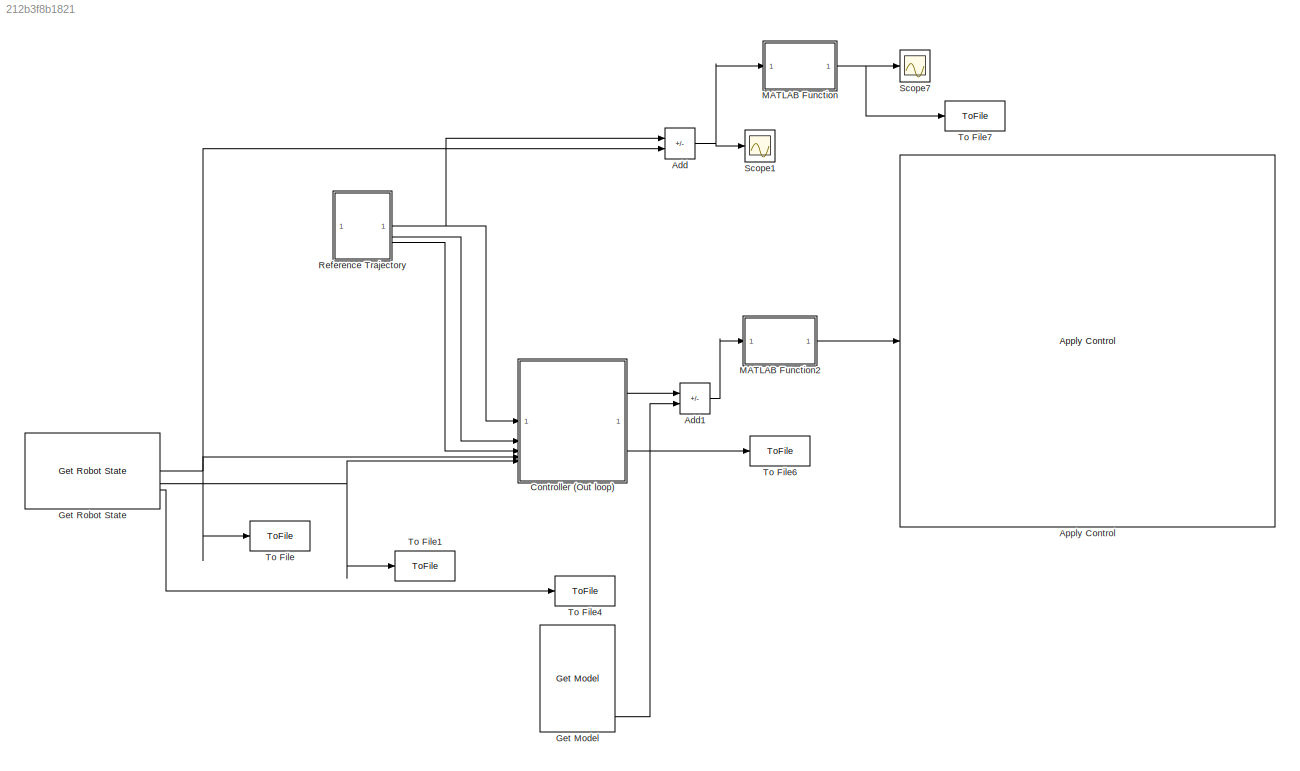
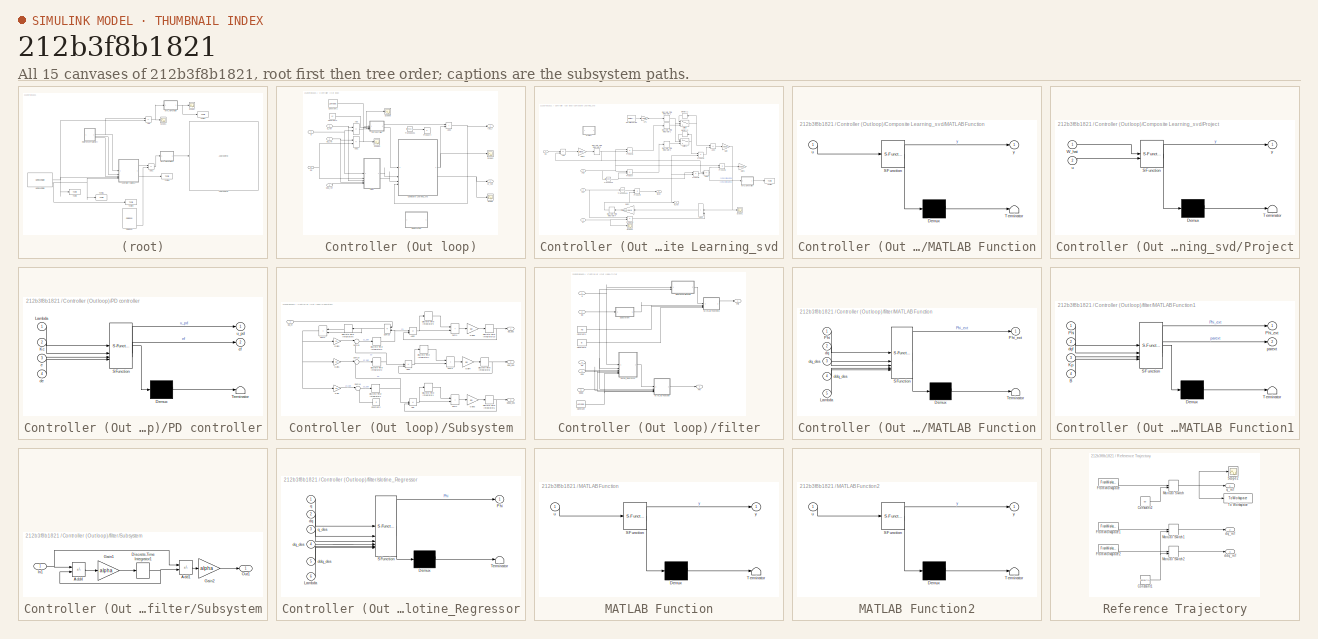
[diagram: thumbnail index - all 15 canvases of the model, root first then tree order]
MODEL mdl_212b3f8b1821
KIND model
CONFIG AbsTol = auto
CONFIG EnableMultiTasking = on
CONFIG FixedStep = 0.001
CONFIG MaxStep = auto
CONFIG MinStep = auto
CONFIG PreLoadFcn = set_param(gcs, 'RTWSystemTargetFile', 'franka_emika_panda.tlc');\ndemos_common_configs();
CONFIG RelTol = 1e-3
CONFIG SampleTimeConstraint = Unconstrained
CONFIG SolverName = FixedStepDiscrete
CONFIG StartTime = 0.0
CONFIG StopTime = inf
BLOCK [Sum] Add
  IconShape = rectangular
  Inputs = +-
BLOCK [Sum] Add1
  IconShape = rectangular
  Inputs = +-
BLOCK [Reference] Apply Control  REF=franka_simulink_library/Apply Control
  SourceBlock = franka_simulink_library/Apply Control
  UserDataPersistent = on
BLOCK [SubSystem] Controller (Out loop)
BLOCK [Sum] Controller (Out loop)/Add
  IconShape = rectangular
  Inputs = +-
BLOCK [Sum] Controller (Out loop)/Add1
  IconShape = rectangular
  Inputs = +-
BLOCK [Sum] Controller (Out loop)/Add2
  IconShape = rectangular
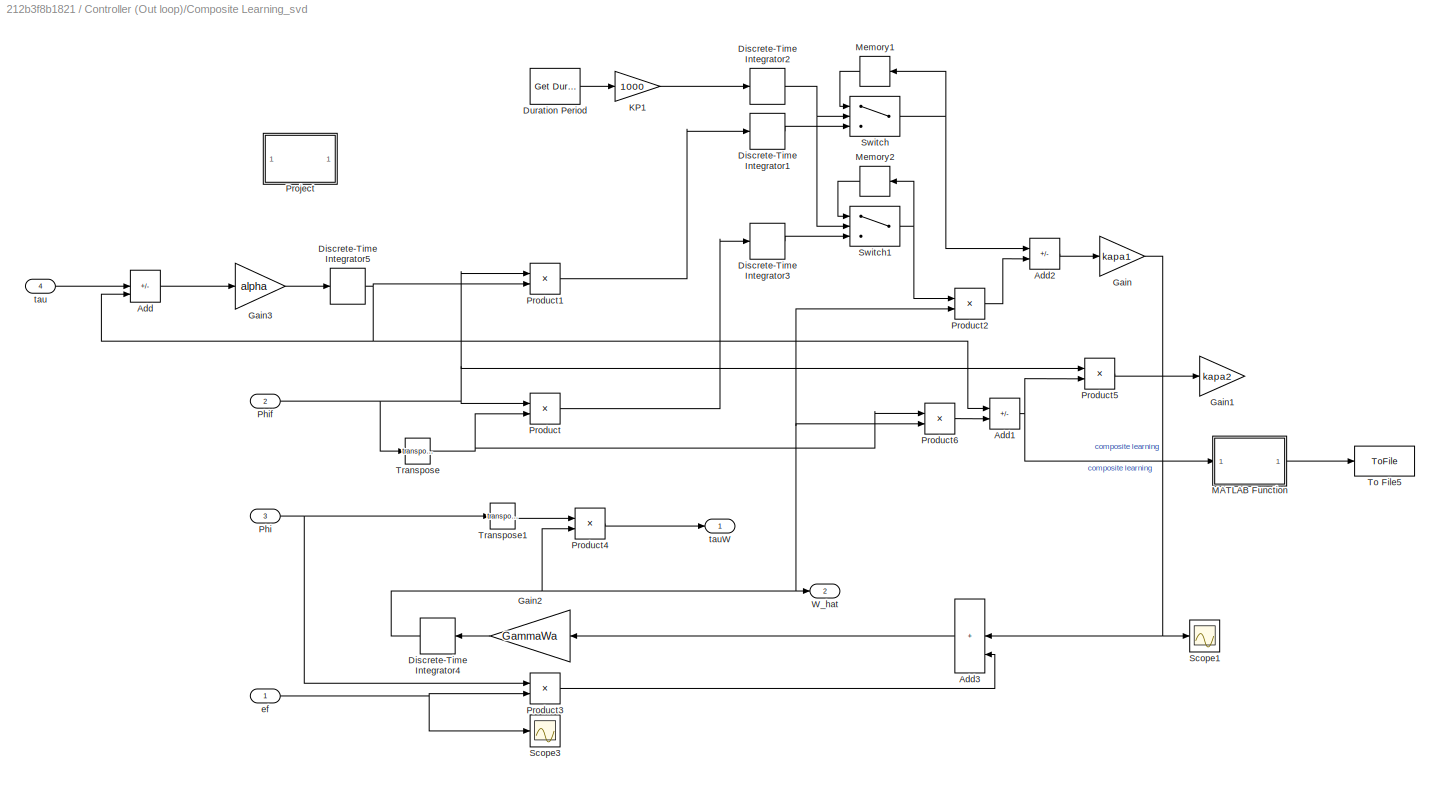
BLOCK [SubSystem] Controller (Out loop)/Composite Learning_svd
BLOCK [Sum] Controller (Out loop)/Composite Learning_svd/Add
  IconShape = rectangular
  Inputs = ++-
BLOCK [Sum] Controller (Out loop)/Composite Learning_svd/Add1
  IconShape = rectangular
  Inputs = +-
BLOCK [Sum] Controller (Out loop)/Composite Learning_svd/Add2
  IconShape = rectangular
  Inputs = +-
BLOCK [Sum] Controller (Out loop)/Composite Learning_svd/Add3
  IconShape = rectangular
  Inputs = +++
  NameLocation = top
BLOCK [DiscreteIntegrator] Controller (Out loop)/Composite Learning_svd/Discrete-Time Integrator1
  ICPrevOutput = DiscIntNeverNeededParam
  ICPrevScaledInput = DiscIntNeverNeededParam
  InitialConditionSetting = Auto
  SampleTime = -1
BLOCK [DiscreteIntegrator] Controller (Out loop)/Composite Learning_svd/Discrete-Time Integrator2
  ICPrevOutput = DiscIntNeverNeededParam
  ICPrevScaledInput = DiscIntNeverNeededParam
  SampleTime = -1
BLOCK [DiscreteIntegrator] Controller (Out loop)/Composite Learning_svd/Discrete-Time Integrator3
  ICPrevOutput = DiscIntNeverNeededParam
  ICPrevScaledInput = DiscIntNeverNeededParam
  InitialConditionSetting = Auto
  SampleTime = -1
BLOCK [DiscreteIntegrator] Controller (Out loop)/Composite Learning_svd/Discrete-Time Integrator4
  ICPrevOutput = DiscIntNeverNeededParam
  ICPrevScaledInput = DiscIntNeverNeededParam
  InitialConditionSetting = Auto
  NameLocation = top
  SampleTime = -1
BLOCK [DiscreteIntegrator] Controller (Out loop)/Composite Learning_svd/Discrete-Time Integrator5
  ICPrevOutput = DiscIntNeverNeededParam
  ICPrevScaledInput = DiscIntNeverNeededParam
  InitialConditionSetting = Auto
  SampleTime = -1
BLOCK [Reference] Controller (Out loop)/Composite Learning_svd/Duration Period  REF=franka_simulink_library/Get Duration Period
  SourceBlock = franka_simulink_library/Get Duration Period
BLOCK [Gain] Controller (Out loop)/Composite Learning_svd/Gain
  Gain = kapa1
BLOCK [Gain] Controller (Out loop)/Composite Learning_svd/Gain1
  Commented = on
  Gain = kapa2
BLOCK [Gain] Controller (Out loop)/Composite Learning_svd/Gain2
  Gain = GammaWa
  Multiplication = Matrix(K*u)
  NameLocation = top
BLOCK [Gain] Controller (Out loop)/Composite Learning_svd/Gain3
  Gain = alpha
BLOCK [Gain] Controller (Out loop)/Composite Learning_svd/KP1
  Gain = 1000
BLOCK [SubSystem] Controller (Out loop)/Composite Learning_svd/MATLAB Function
  ErrorFcn = Stateflow.Translate.translate
  PermitHierarchicalResolution = ExplicitOnly
  SFBlockType = MATLAB Function
  TreatAsAtomicUnit = on
BLOCK [Demux] Controller (Out loop)/Composite Learning_svd/MATLAB Function/ Demux 
  Outputs = 1
BLOCK [S-Function] Controller (Out loop)/Composite Learning_svd/MATLAB Function/ SFunction 
  EnableBusSupport = off
  FunctionName = sf_sfun
  PortCounts = [1 2]
  SFcnIsStateOwnerBlock = off
  SFunctionDeploymentMode = off
  Tag = Stateflow S-Function 6
BLOCK [Terminator] Controller (Out loop)/Composite Learning_svd/MATLAB Function/ Terminator 
BLOCK [Inport] Controller (Out loop)/Composite Learning_svd/MATLAB Function/u
BLOCK [Outport] Controller (Out loop)/Composite Learning_svd/MATLAB Function/y
BLOCK [Memory] Controller (Out loop)/Composite Learning_svd/Memory1
  NameLocation = top
BLOCK [Memory] Controller (Out loop)/Composite Learning_svd/Memory2
  NameLocation = top
BLOCK [Inport] Controller (Out loop)/Composite Learning_svd/Phi
  Port = 3
BLOCK [Inport] Controller (Out loop)/Composite Learning_svd/Phif
  Port = 2
BLOCK [Product] Controller (Out loop)/Composite Learning_svd/Product
  Multiplication = Matrix(*)
BLOCK [Product] Controller (Out loop)/Composite Learning_svd/Product1
  Multiplication = Matrix(*)
BLOCK [Product] Controller (Out loop)/Composite Learning_svd/Product2
  Multiplication = Matrix(*)
BLOCK [Product] Controller (Out loop)/Composite Learning_svd/Product3
  Multiplication = Matrix(*)
BLOCK [Product] Controller (Out loop)/Composite Learning_svd/Product4
  Multiplication = Matrix(*)
BLOCK [Product] Controller (Out loop)/Composite Learning_svd/Product5
  Commented = on
  Multiplication = Matrix(*)
BLOCK [Product] Controller (Out loop)/Composite Learning_svd/Product6
  Multiplication = Matrix(*)
BLOCK [SubSystem] Controller (Out loop)/Composite Learning_svd/Project
  Commented = on
  ErrorFcn = Stateflow.Translate.translate
  NameLocation = top
  PermitHierarchicalResolution = ExplicitOnly
  SFBlockType = MATLAB Function
  TreatAsAtomicUnit = on
BLOCK [Demux] Controller (Out loop)/Composite Learning_svd/Project/ Demux 
  Outputs = 1
BLOCK [S-Function] Controller (Out loop)/Composite Learning_svd/Project/ SFunction 
  EnableBusSupport = off
  FunctionName = sf_sfun
  PortCounts = [2 2]
  SFcnIsStateOwnerBlock = off
  SFunctionDeploymentMode = off
  Tag = Stateflow S-Function 9
BLOCK [Terminator] Controller (Out loop)/Composite Learning_svd/Project/ Terminator 
BLOCK [Inport] Controller (Out loop)/Composite Learning_svd/Project/W_hat
BLOCK [Inport] Controller (Out loop)/Composite Learning_svd/Project/u
  Port = 2
BLOCK [Outport] Controller (Out loop)/Composite Learning_svd/Project/y
BLOCK [Scope] Controller (Out loop)/Composite Learning_svd/Scope1
  Floating = off
  NumInputPorts = 1
  ScopeSpecificationString = Simulink.scopes.TimeScopeBlockCfg('CurrentConfiguration', extmgr.ConfigurationSet(extmgr.Configuration('Core','General UI',true),extmgr.Configuration('Core','Source UI',true),extmgr.Configuration('Sources','WiredSimulink',true,'DataLoggingVariableName','ScopeData1'),extmgr.Configuration('Visuals','Time Domain',true,'SerializedDisplays',{struct('MinYLimReal','-336472547.61572','MaxYLimReal','330208...<+3174ch>
BLOCK [Scope] Controller (Out loop)/Composite Learning_svd/Scope3
  Floating = off
  NumInputPorts = 1
  ScopeSpecificationString = Simulink.scopes.TimeScopeBlockCfg('CurrentConfiguration', extmgr.ConfigurationSet(extmgr.Configuration('Core','General UI',true),extmgr.Configuration('Core','Source UI',true),extmgr.Configuration('Sources','WiredSimulink',true,'DataLoggingVariableName','ScopeData2'),extmgr.Configuration('Visuals','Time Domain',true,'SerializedDisplays',{struct('MinYLimReal','-0.15797','MaxYLimReal','0.18941','YLab...<+1513ch>
BLOCK [Switch] Controller (Out loop)/Composite Learning_svd/Switch
  Criteria = u2 > Threshold
  InputSameDT = off
  SaturateOnIntegerOverflow = off
  Threshold = taud
BLOCK [Switch] Controller (Out loop)/Composite Learning_svd/Switch1
  Criteria = u2 > Threshold
  InputSameDT = off
  SaturateOnIntegerOverflow = off
  Threshold = taud
BLOCK [ToFile] Controller (Out loop)/Composite Learning_svd/To File5
  Filename = pre_err.mat
  MatrixName = pre_err
BLOCK [Math] Controller (Out loop)/Composite Learning_svd/Transpose
  Operator = transpose
BLOCK [Math] Controller (Out loop)/Composite Learning_svd/Transpose1
  Operator = transpose
BLOCK [Outport] Controller (Out loop)/Composite Learning_svd/W_hat
  Port = 2
BLOCK [Inport] Controller (Out loop)/Composite Learning_svd/ef
BLOCK [Inport] Controller (Out loop)/Composite Learning_svd/tau
  Port = 4
BLOCK [Outport] Controller (Out loop)/Composite Learning_svd/tauW
BLOCK [Constant] Controller (Out loop)/Constant1
  Value = Lambda
BLOCK [Constant] Controller (Out loop)/Constant2
  Value = Kc
BLOCK [SubSystem] Controller (Out loop)/PD controller
  ErrorFcn = Stateflow.Translate.translate
  PermitHierarchicalResolution = ExplicitOnly
  SFBlockType = MATLAB Function
  TreatAsAtomicUnit = on
BLOCK [Demux] Controller (Out loop)/PD controller/ Demux 
  Outputs = 1
BLOCK [S-Function] Controller (Out loop)/PD controller/ SFunction 
  EnableBusSupport = off
  FunctionName = sf_sfun
  PortCounts = [4 3]
  SFcnIsStateOwnerBlock = off
  SFunctionDeploymentMode = off
  Tag = Stateflow S-Function 1
BLOCK [Terminator] Controller (Out loop)/PD controller/ Terminator 
BLOCK [Inport] Controller (Out loop)/PD controller/Kc
  Port = 2
BLOCK [Inport] Controller (Out loop)/PD controller/Lambda
BLOCK [Inport] Controller (Out loop)/PD controller/de
  Port = 4
BLOCK [Inport] Controller (Out loop)/PD controller/e
  Port = 3
BLOCK [Outport] Controller (Out loop)/PD controller/ef
  Port = 2
BLOCK [Outport] Controller (Out loop)/PD controller/u_pd
BLOCK [Product] Controller (Out loop)/Product4
  Commented = on
  Multiplication = Matrix(*)
BLOCK [Scope] Controller (Out loop)/Scope
  Floating = off
  NumInputPorts = 1
  ScopeSpecificationString = Simulink.scopes.TimeScopeBlockCfg('CurrentConfiguration', extmgr.ConfigurationSet(extmgr.Configuration('Core','General UI',true),extmgr.Configuration('Core','Source UI',true),extmgr.Configuration('Sources','WiredSimulink',true,'DataLoggingVariableName','ScopeData1'),extmgr.Configuration('Visuals','Time Domain',true,'SerializedDisplays',{struct('MinYLimReal','-3.85564','MaxYLimReal','2.47628','YLab...<+3607ch>
BLOCK [Scope] Controller (Out loop)/Scope2
  Floating = off
  NumInputPorts = 1
  ScopeSpecificationString = Simulink.scopes.TimeScopeBlockCfg('CurrentConfiguration', extmgr.ConfigurationSet(extmgr.Configuration('Core','General UI',true),extmgr.Configuration('Core','Source UI',true),extmgr.Configuration('Sources','WiredSimulink',true,'DataLoggingVariableName','ScopeData6'),extmgr.Configuration('Visuals','Time Domain',true,'SerializedDisplays',{struct('MinYLimReal','-55.95954','MaxYLimReal','64.1125','YLa...<+1753ch>
BLOCK [Scope] Controller (Out loop)/Scope3
  Floating = off
  NumInputPorts = 1
  ScopeSpecificationString = Simulink.scopes.TimeScopeBlockCfg('CurrentConfiguration', extmgr.ConfigurationSet(extmgr.Configuration('Core','General UI',true),extmgr.Configuration('Core','Source UI',true),extmgr.Configuration('Sources','WiredSimulink',true,'DataLoggingVariableName','ScopeData8'),extmgr.Configuration('Visuals','Time Domain',true,'SerializedDisplays',{struct('MinYLimReal','-0.48289','MaxYLimReal','0.73256','YLab...<+1611ch>
BLOCK [Scope] Controller (Out loop)/Scope6
  Floating = off
  NumInputPorts = 1
  ScopeSpecificationString = Simulink.scopes.TimeScopeBlockCfg('CurrentConfiguration', extmgr.ConfigurationSet(extmgr.Configuration('Core','General UI',true),extmgr.Configuration('Core','Source UI',true),extmgr.Configuration('Sources','WiredSimulink',true,'DataLoggingVariableName','ScopeData7'),extmgr.Configuration('Visuals','Time Domain',true,'SerializedDisplays',{struct('MinYLimReal','-2.71875','MaxYLimReal','1.96875','YLab...<+1604ch>
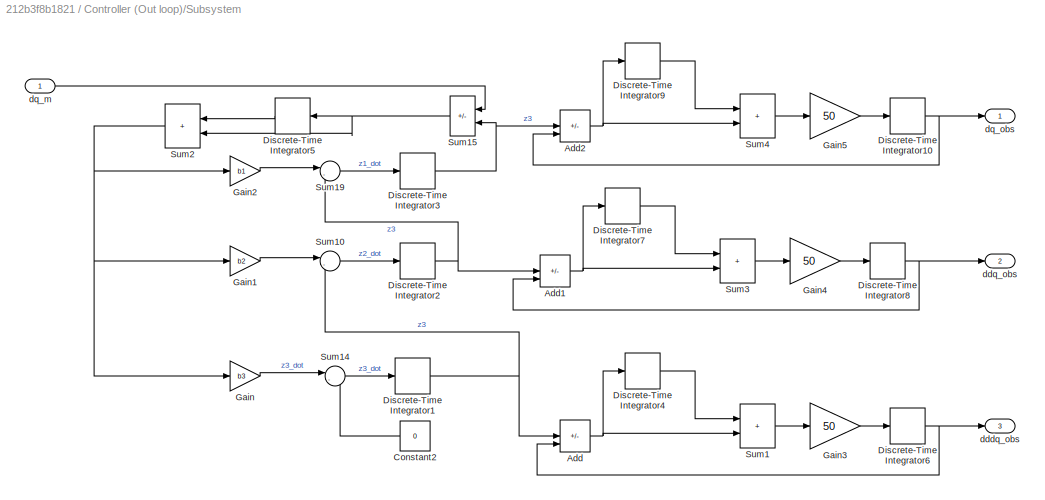
BLOCK [SubSystem] Controller (Out loop)/Subsystem
  Commented = on
BLOCK [Sum] Controller (Out loop)/Subsystem/Add
  IconShape = rectangular
  Inputs = ++-
BLOCK [Sum] Controller (Out loop)/Subsystem/Add1
  IconShape = rectangular
  Inputs = ++-
BLOCK [Sum] Controller (Out loop)/Subsystem/Add2
  IconShape = rectangular
  Inputs = ++-
BLOCK [Constant] Controller (Out loop)/Subsystem/Constant2
  NameLocation = top
  Value = 0
BLOCK [DiscreteIntegrator] Controller (Out loop)/Subsystem/Discrete-Time Integrator1
  ICPrevOutput = DiscIntNeverNeededParam
  ICPrevScaledInput = DiscIntNeverNeededParam
  InitialConditionSetting = Auto
  SampleTime = -1
BLOCK [DiscreteIntegrator] Controller (Out loop)/Subsystem/Discrete-Time Integrator10
  ICPrevOutput = DiscIntNeverNeededParam
  ICPrevScaledInput = DiscIntNeverNeededParam
  InitialConditionSetting = Auto
  SampleTime = -1
BLOCK [DiscreteIntegrator] Controller (Out loop)/Subsystem/Discrete-Time Integrator2
  ICPrevOutput = DiscIntNeverNeededParam
  ICPrevScaledInput = DiscIntNeverNeededParam
  InitialConditionSetting = Auto
  SampleTime = -1
BLOCK [DiscreteIntegrator] Controller (Out loop)/Subsystem/Discrete-Time Integrator3
  ICPrevOutput = DiscIntNeverNeededParam
  ICPrevScaledInput = DiscIntNeverNeededParam
  InitialConditionSetting = Auto
  SampleTime = -1
BLOCK [DiscreteIntegrator] Controller (Out loop)/Subsystem/Discrete-Time Integrator4
  ICPrevOutput = DiscIntNeverNeededParam
  ICPrevScaledInput = DiscIntNeverNeededParam
  InitialConditionSetting = Auto
  SampleTime = -1
BLOCK [DiscreteIntegrator] Controller (Out loop)/Subsystem/Discrete-Time Integrator5
  ICPrevOutput = DiscIntNeverNeededParam
  ICPrevScaledInput = DiscIntNeverNeededParam
  InitialConditionSetting = Auto
  NameLocation = top
  SampleTime = -1
BLOCK [DiscreteIntegrator] Controller (Out loop)/Subsystem/Discrete-Time Integrator6
  ICPrevOutput = DiscIntNeverNeededParam
  ICPrevScaledInput = DiscIntNeverNeededParam
  InitialConditionSetting = Auto
  SampleTime = -1
BLOCK [DiscreteIntegrator] Controller (Out loop)/Subsystem/Discrete-Time Integrator7
  ICPrevOutput = DiscIntNeverNeededParam
  ICPrevScaledInput = DiscIntNeverNeededParam
  InitialConditionSetting = Auto
  SampleTime = -1
BLOCK [DiscreteIntegrator] Controller (Out loop)/Subsystem/Discrete-Time Integrator8
  ICPrevOutput = DiscIntNeverNeededParam
  ICPrevScaledInput = DiscIntNeverNeededParam
  InitialConditionSetting = Auto
  SampleTime = -1
BLOCK [DiscreteIntegrator] Controller (Out loop)/Subsystem/Discrete-Time Integrator9
  ICPrevOutput = DiscIntNeverNeededParam
  ICPrevScaledInput = DiscIntNeverNeededParam
  InitialConditionSetting = Auto
  SampleTime = -1
BLOCK [Gain] Controller (Out loop)/Subsystem/Gain
  Gain = b3
BLOCK [Gain] Controller (Out loop)/Subsystem/Gain1
  Gain = b2
BLOCK [Gain] Controller (Out loop)/Subsystem/Gain2
  Gain = b1
BLOCK [Gain] Controller (Out loop)/Subsystem/Gain3
  Gain = 50
BLOCK [Gain] Controller (Out loop)/Subsystem/Gain4
  Gain = 50
BLOCK [Gain] Controller (Out loop)/Subsystem/Gain5
  Gain = 50
BLOCK [Sum] Controller (Out loop)/Subsystem/Sum1
  IconShape = rectangular
BLOCK [Sum] Controller (Out loop)/Subsystem/Sum10
  Inputs = |-+
BLOCK [Sum] Controller (Out loop)/Subsystem/Sum14
  Inputs = |-+
BLOCK [Sum] Controller (Out loop)/Subsystem/Sum15
  IconShape = rectangular
  Inputs = -+
  NameLocation = top
BLOCK [Sum] Controller (Out loop)/Subsystem/Sum19
  Inputs = |-+
BLOCK [Sum] Controller (Out loop)/Subsystem/Sum2
  IconShape = rectangular
  NameLocation = top
BLOCK [Sum] Controller (Out loop)/Subsystem/Sum3
  IconShape = rectangular
BLOCK [Sum] Controller (Out loop)/Subsystem/Sum4
  IconShape = rectangular
BLOCK [Outport] Controller (Out loop)/Subsystem/dddq_obs
  Port = 3
BLOCK [Outport] Controller (Out loop)/Subsystem/ddq_obs
  Port = 2
BLOCK [Inport] Controller (Out loop)/Subsystem/dq_m
BLOCK [Outport] Controller (Out loop)/Subsystem/dq_obs
BLOCK [Math] Controller (Out loop)/Transpose1
  Commented = on
  Operator = transpose
BLOCK [Outport] Controller (Out loop)/W_hat
  Port = 2
BLOCK [Inport] Controller (Out loop)/ddq_ref
  Port = 3
BLOCK [Inport] Controller (Out loop)/dq
  Port = 5
BLOCK [Inport] Controller (Out loop)/dq_ref
  Port = 2
BLOCK [SubSystem] Controller (Out loop)/filter
BLOCK [Constant] Controller (Out loop)/filter/Constant
  Value = Lambda
BLOCK [Constant] Controller (Out loop)/filter/Constant4
  Value = Kp
BLOCK [Constant] Controller (Out loop)/filter/Constant5
  Value = B
BLOCK [SubSystem] Controller (Out loop)/filter/MATLAB Function
  ErrorFcn = Stateflow.Translate.translate
  PermitHierarchicalResolution = ExplicitOnly
  SFBlockType = MATLAB Function
  TreatAsAtomicUnit = on
BLOCK [Demux] Controller (Out loop)/filter/MATLAB Function/ Demux 
  Outputs = 1
BLOCK [S-Function] Controller (Out loop)/filter/MATLAB Function/ SFunction 
  EnableBusSupport = off
  FunctionName = sf_sfun
  PortCounts = [5 2]
  SFcnIsStateOwnerBlock = off
  SFunctionDeploymentMode = off
  Tag = Stateflow S-Function 21
BLOCK [Terminator] Controller (Out loop)/filter/MATLAB Function/ Terminator 
BLOCK [Inport] Controller (Out loop)/filter/MATLAB Function/Lambda
  Port = 5
BLOCK [Inport] Controller (Out loop)/filter/MATLAB Function/Phi
BLOCK [Outport] Controller (Out loop)/filter/MATLAB Function/Phi_ext
BLOCK [Inport] Controller (Out loop)/filter/MATLAB Function/ddq_des
  Port = 4
BLOCK [Inport] Controller (Out loop)/filter/MATLAB Function/dq
  Port = 2
BLOCK [Inport] Controller (Out loop)/filter/MATLAB Function/dq_des
  Port = 3
BLOCK [SubSystem] Controller (Out loop)/filter/MATLAB Function1
  ErrorFcn = Stateflow.Translate.translate
  PermitHierarchicalResolution = ExplicitOnly
  SFBlockType = MATLAB Function
  TreatAsAtomicUnit = on
BLOCK [Demux] Controller (Out loop)/filter/MATLAB Function1/ Demux 
  Outputs = 1
BLOCK [S-Function] Controller (Out loop)/filter/MATLAB Function1/ SFunction 
  EnableBusSupport = off
  FunctionName = sf_sfun
  PortCounts = [4 3]
  SFcnIsStateOwnerBlock = off
  SFunctionDeploymentMode = off
  Tag = Stateflow S-Function 26
BLOCK [Terminator] Controller (Out loop)/filter/MATLAB Function1/ Terminator 
BLOCK [Inport] Controller (Out loop)/filter/MATLAB Function1/B
  Port = 4
BLOCK [Inport] Controller (Out loop)/filter/MATLAB Function1/Kp
  Port = 3
BLOCK [Inport] Controller (Out loop)/filter/MATLAB Function1/Phi
BLOCK [Outport] Controller (Out loop)/filter/MATLAB Function1/Phi_ext
BLOCK [Inport] Controller (Out loop)/filter/MATLAB Function1/dqf
  Port = 2
BLOCK [Outport] Controller (Out loop)/filter/MATLAB Function1/parext
  Port = 2
BLOCK [Outport] Controller (Out loop)/filter/Phi
  Port = 2
BLOCK [Outport] Controller (Out loop)/filter/Phif
BLOCK [ModelReference] Controller (Out loop)/filter/RegressorFiltering
  CopyOfModelProtected = on
  ModelNameDialog = RegressorFiltering
  ModelReferenceVersion = 9.2
BLOCK [SubSystem] Controller (Out loop)/filter/Subsystem
BLOCK [Sum] Controller (Out loop)/filter/Subsystem/Add1
  IconShape = rectangular
  Inputs = +-
BLOCK [Sum] Controller (Out loop)/filter/Subsystem/Add4
  IconShape = rectangular
  Inputs = +-
BLOCK [DiscreteIntegrator] Controller (Out loop)/filter/Subsystem/Discrete-Time Integrator1
  ICPrevOutput = DiscIntNeverNeededParam
  ICPrevScaledInput = DiscIntNeverNeededParam
  InitialConditionSetting = Auto
  SampleTime = Ts
BLOCK [Gain] Controller (Out loop)/filter/Subsystem/Gain1
  Gain = alpha
BLOCK [Gain] Controller (Out loop)/filter/Subsystem/Gain2
  Gain = alpha
BLOCK [Inport] Controller (Out loop)/filter/Subsystem/In1
BLOCK [Outport] Controller (Out loop)/filter/Subsystem/Out1
BLOCK [Inport] Controller (Out loop)/filter/ddqd
  Port = 5
BLOCK [Inport] Controller (Out loop)/filter/dq
  Port = 2
BLOCK [Inport] Controller (Out loop)/filter/dqd
  Port = 4
BLOCK [Inport] Controller (Out loop)/filter/q
BLOCK [Inport] Controller (Out loop)/filter/qd
  Port = 3
BLOCK [SubSystem] Controller (Out loop)/filter/slotine_Regressor
  ErrorFcn = Stateflow.Translate.translate
  PermitHierarchicalResolution = ExplicitOnly
  SFBlockType = MATLAB Function
  TreatAsAtomicUnit = on
BLOCK [Demux] Controller (Out loop)/filter/slotine_Regressor/ Demux 
  Outputs = 1
BLOCK [S-Function] Controller (Out loop)/filter/slotine_Regressor/ SFunction 
  EnableBusSupport = off
  FunctionName = sf_sfun
  PortCounts = [6 2]
  SFcnIsStateOwnerBlock = off
  SFunctionDeploymentMode = off
  Tag = Stateflow S-Function 2
BLOCK [Terminator] Controller (Out loop)/filter/slotine_Regressor/ Terminator 
BLOCK [Inport] Controller (Out loop)/filter/slotine_Regressor/Lambda
  Port = 6
BLOCK [Outport] Controller (Out loop)/filter/slotine_Regressor/Phi
BLOCK [Inport] Controller (Out loop)/filter/slotine_Regressor/ddq_des
  Port = 5
BLOCK [Inport] Controller (Out loop)/filter/slotine_Regressor/dq
  Port = 2
BLOCK [Inport] Controller (Out loop)/filter/slotine_Regressor/dq_des
  Port = 4
BLOCK [Inport] Controller (Out loop)/filter/slotine_Regressor/q
BLOCK [Inport] Controller (Out loop)/filter/slotine_Regressor/q_des
  Port = 3
BLOCK [Inport] Controller (Out loop)/q
  Port = 4
BLOCK [Inport] Controller (Out loop)/q_ref
BLOCK [Outport] Controller (Out loop)/tau_r
BLOCK [Reference] Get Model  REF=franka_simulink_library/Get Model
  SourceBlock = franka_simulink_library/Get Model
BLOCK [Reference] Get Robot State  REF=franka_simulink_library/Get Robot State
  SourceBlock = franka_simulink_library/Get Robot State
BLOCK [SubSystem] MATLAB Function
  ErrorFcn = Stateflow.Translate.translate
  PermitHierarchicalResolution = ExplicitOnly
  SFBlockType = MATLAB Function
  TreatAsAtomicUnit = on
BLOCK [Demux] MATLAB Function/ Demux 
  Outputs = 1
BLOCK [S-Function] MATLAB Function/ SFunction 
  EnableBusSupport = off
  FunctionName = sf_sfun
  PortCounts = [1 2]
  SFcnIsStateOwnerBlock = off
  SFunctionDeploymentMode = off
  Tag = Stateflow S-Function 5
BLOCK [Terminator] MATLAB Function/ Terminator 
BLOCK [Inport] MATLAB Function/u
BLOCK [Outport] MATLAB Function/y
BLOCK [SubSystem] MATLAB Function2
  ErrorFcn = Stateflow.Translate.translate
  PermitHierarchicalResolution = ExplicitOnly
  SFBlockType = MATLAB Function
  TreatAsAtomicUnit = on
BLOCK [Demux] MATLAB Function2/ Demux 
  Outputs = 1
BLOCK [S-Function] MATLAB Function2/ SFunction 
  EnableBusSupport = off
  FunctionName = sf_sfun
  PortCounts = [1 2]
  SFcnIsStateOwnerBlock = off
  SFunctionDeploymentMode = off
  Tag = Stateflow S-Function 4
BLOCK [Terminator] MATLAB Function2/ Terminator 
BLOCK [Inport] MATLAB Function2/u
BLOCK [Outport] MATLAB Function2/y
BLOCK [SubSystem] Reference Trajectory
BLOCK [Constant] Reference Trajectory/Constant1
  Value = zeros(7,1)
BLOCK [Constant] Reference Trajectory/Constant2
  Value = q0
BLOCK [FromWorkspace] Reference Trajectory/From Workspace
  VariableName = traj.qd
BLOCK [FromWorkspace] Reference Trajectory/From Workspace1
  VariableName = traj.dqd
BLOCK [FromWorkspace] Reference Trajectory/From Workspace2
  VariableName = traj.ddqd
BLOCK [ManualSwitch] Reference Trajectory/Manual Switch
BLOCK [ManualSwitch] Reference Trajectory/Manual Switch1
BLOCK [ManualSwitch] Reference Trajectory/Manual Switch2
BLOCK [Scope] Reference Trajectory/Scope2
  Floating = off
  NumInputPorts = 1
  ScopeSpecificationString = Simulink.scopes.TimeScopeBlockCfg('CurrentConfiguration', extmgr.ConfigurationSet(extmgr.Configuration('Core','General UI',true),extmgr.Configuration('Core','Source UI',true),extmgr.Configuration('Sources','WiredSimulink',true,'DataLoggingVariableName','ScopeData1'),extmgr.Configuration('Visuals','Time Domain',true,'SerializedDisplays',{struct('MinYLimReal','-4.38608','MaxYLimReal','4.40486','YLab...<+1675ch>
BLOCK [ToWorkspace] Reference Trajectory/To Workspace
  Commented = on
  FixptAsFi = on
  MaxDataPoints = inf
  SampleTime = -1
  SaveFormat = Timeseries
  VariableName = q_ref
BLOCK [Outport] Reference Trajectory/ddq_ref
  Port = 3
BLOCK [Outport] Reference Trajectory/dq_ref
  Port = 2
BLOCK [Outport] Reference Trajectory/q_ref
BLOCK [Scope] Scope1
  Floating = off
  NumInputPorts = 1
  ScopeSpecificationString = Simulink.scopes.TimeScopeBlockCfg('CurrentConfiguration', extmgr.ConfigurationSet(extmgr.Configuration('Core','General UI',true),extmgr.Configuration('Core','Source UI',true),extmgr.Configuration('Sources','WiredSimulink',true,'DataLoggingVariableName','ScopeData1','DataLoggingSaveFormat','StructureWithTime','DataLoggingMaxPoints','25000'),extmgr.Configuration('Visuals','Time Domain',true,'Seriali...<+1560ch>
BLOCK [Scope] Scope7
  Floating = off
  NumInputPorts = 1
  ScopeSpecificationString = Simulink.scopes.TimeScopeBlockCfg('CurrentConfiguration', extmgr.ConfigurationSet(extmgr.Configuration('Core','General UI',true),extmgr.Configuration('Core','Source UI',true),extmgr.Configuration('Sources','WiredSimulink',true,'DataLoggingVariableName','ScopeData3','DataLoggingSaveFormat','StructureWithTime','DataLoggingMaxPoints','25000'),extmgr.Configuration('Visuals','Time Domain',true,'Seriali...<+1520ch>
BLOCK [ToFile] To File
  Filename = q.mat
  MatrixName = q
BLOCK [ToFile] To File1
  Filename = dq.mat
  MatrixName = dq
BLOCK [ToFile] To File4
  Filename = tau_a.mat
  MatrixName = tau_a
BLOCK [ToFile] To File6
  Filename = W_hat.mat
  MatrixName = W_hat
BLOCK [ToFile] To File7
  Filename = err_norm.mat
  MatrixName = err_norm
LINE Add1:1 -> MATLAB Function2:1
NET Add:1 -> MATLAB Function:1, Scope1:1
NET Controller (Out loop)/Add1:1 -> Controller (Out loop)/PD controller:4, Controller (Out loop)/Scope3:1
NET Controller (Out loop)/Add2:1 -> Controller (Out loop)/Composite Learning_svd:4, Controller (Out loop)/tau_r:1
NET Controller (Out loop)/Add:1 -> Controller (Out loop)/PD controller:3, Controller (Out loop)/Scope6:1
NET Controller (Out loop)/Composite Learning_svd/Add1:1 -> Controller (Out loop)/Composite Learning_svd/MATLAB Function:1, Controller (Out loop)/Composite Learning_svd/Product5:2
LINE Controller (Out loop)/Composite Learning_svd/Add2:1 -> Controller (Out loop)/Composite Learning_svd/Gain:1
LINE Controller (Out loop)/Composite Learning_svd/Add3:1 -> Controller (Out loop)/Composite Learning_svd/Gain2:1
LINE Controller (Out loop)/Composite Learning_svd/Add:1 -> Controller (Out loop)/Composite Learning_svd/Gain3:1
LINE Controller (Out loop)/Composite Learning_svd/Discrete-Time Integrator1:1 -> Controller (Out loop)/Composite Learning_svd/Switch:3
NET Controller (Out loop)/Composite Learning_svd/Discrete-Time Integrator2:1 -> Controller (Out loop)/Composite Learning_svd/Switch1:2, Controller (Out loop)/Composite Learning_svd/Switch:2
LINE Controller (Out loop)/Composite Learning_svd/Discrete-Time Integrator3:1 -> Controller (Out loop)/Composite Learning_svd/Switch1:3
NET Controller (Out loop)/Composite Learning_svd/Discrete-Time Integrator4:1 -> Controller (Out loop)/Composite Learning_svd/Product2:2, Controller (Out loop)/Composite Learning_svd/Product4:2, Controller (Out loop)/Composite Learning_svd/Product6:2, Controller (Out loop)/Composite Learning_svd/W_hat:1
NET Controller (Out loop)/Composite Learning_svd/Discrete-Time Integrator5:1 -> Controller (Out loop)/Composite Learning_svd/Add1:1, Controller (Out loop)/Composite Learning_svd/Add:3, Controller (Out loop)/Composite Learning_svd/Product1:2
LINE Controller (Out loop)/Composite Learning_svd/Duration Period:1 -> Controller (Out loop)/Composite Learning_svd/KP1:1
LINE Controller (Out loop)/Composite Learning_svd/Gain2:1 -> Controller (Out loop)/Composite Learning_svd/Discrete-Time Integrator4:1
LINE Controller (Out loop)/Composite Learning_svd/Gain3:1 -> Controller (Out loop)/Composite Learning_svd/Discrete-Time Integrator5:1
NET Controller (Out loop)/Composite Learning_svd/Gain:1 -> Controller (Out loop)/Composite Learning_svd/Add3:2, Controller (Out loop)/Composite Learning_svd/Scope1:1
LINE Controller (Out loop)/Composite Learning_svd/KP1:1 -> Controller (Out loop)/Composite Learning_svd/Discrete-Time Integrator2:1
LINE Controller (Out loop)/Composite Learning_svd/MATLAB Function:1 -> Controller (Out loop)/Composite Learning_svd/To File5:1
LINE Controller (Out loop)/Composite Learning_svd/Memory1:1 -> Controller (Out loop)/Composite Learning_svd/Switch:1
LINE Controller (Out loop)/Composite Learning_svd/Memory2:1 -> Controller (Out loop)/Composite Learning_svd/Switch1:1
NET Controller (Out loop)/Composite Learning_svd/Phi:1 -> Controller (Out loop)/Composite Learning_svd/Product3:1, Controller (Out loop)/Composite Learning_svd/Transpose1:1
NET Controller (Out loop)/Composite Learning_svd/Phif:1 -> Controller (Out loop)/Composite Learning_svd/Product1:1, Controller (Out loop)/Composite Learning_svd/Product5:1, Controller (Out loop)/Composite Learning_svd/Product:1, Controller (Out loop)/Composite Learning_svd/Transpose:1
LINE Controller (Out loop)/Composite Learning_svd/Product1:1 -> Controller (Out loop)/Composite Learning_svd/Discrete-Time Integrator1:1
LINE Controller (Out loop)/Composite Learning_svd/Product2:1 -> Controller (Out loop)/Composite Learning_svd/Add2:2
LINE Controller (Out loop)/Composite Learning_svd/Product3:1 -> Controller (Out loop)/Composite Learning_svd/Add3:3
LINE Controller (Out loop)/Composite Learning_svd/Product4:1 -> Controller (Out loop)/Composite Learning_svd/tauW:1
LINE Controller (Out loop)/Composite Learning_svd/Product5:1 -> Controller (Out loop)/Composite Learning_svd/Gain1:1
LINE Controller (Out loop)/Composite Learning_svd/Product6:1 -> Controller (Out loop)/Composite Learning_svd/Add1:2
LINE Controller (Out loop)/Composite Learning_svd/Product:1 -> Controller (Out loop)/Composite Learning_svd/Discrete-Time Integrator3:1
NET Controller (Out loop)/Composite Learning_svd/Switch1:1 -> Controller (Out loop)/Composite Learning_svd/Memory2:1, Controller (Out loop)/Composite Learning_svd/Product2:1
NET Controller (Out loop)/Composite Learning_svd/Switch:1 -> Controller (Out loop)/Composite Learning_svd/Add2:1, Controller (Out loop)/Composite Learning_svd/Memory1:1
LINE Controller (Out loop)/Composite Learning_svd/Transpose1:1 -> Controller (Out loop)/Composite Learning_svd/Product4:1
NET Controller (Out loop)/Composite Learning_svd/Transpose:1 -> Controller (Out loop)/Composite Learning_svd/Product6:1, Controller (Out loop)/Composite Learning_svd/Product:2
NET Controller (Out loop)/Composite Learning_svd/ef:1 -> Controller (Out loop)/Composite Learning_svd/Product3:2, Controller (Out loop)/Composite Learning_svd/Scope3:1
LINE Controller (Out loop)/Composite Learning_svd/tau:1 -> Controller (Out loop)/Composite Learning_svd/Add:2
NET Controller (Out loop)/Composite Learning_svd:1 -> Controller (Out loop)/Add2:2, Controller (Out loop)/Scope2:1
NET Controller (Out loop)/Composite Learning_svd:2 -> Controller (Out loop)/Scope:1, Controller (Out loop)/W_hat:1
LINE Controller (Out loop)/Constant1:1 -> Controller (Out loop)/PD controller:1
LINE Controller (Out loop)/Constant2:1 -> Controller (Out loop)/PD controller:2
LINE Controller (Out loop)/PD controller:1 -> Controller (Out loop)/Add2:1
LINE Controller (Out loop)/PD controller:2 -> Controller (Out loop)/Composite Learning_svd:1
NET Controller (Out loop)/Subsystem/Add1:1 -> Controller (Out loop)/Subsystem/Discrete-Time Integrator7:1, Controller (Out loop)/Subsystem/Sum3:2
NET Controller (Out loop)/Subsystem/Add2:1 -> Controller (Out loop)/Subsystem/Discrete-Time Integrator9:1, Controller (Out loop)/Subsystem/Sum4:2
NET Controller (Out loop)/Subsystem/Add:1 -> Controller (Out loop)/Subsystem/Discrete-Time Integrator4:1, Controller (Out loop)/Subsystem/Sum1:2
LINE Controller (Out loop)/Subsystem/Constant2:1 -> Controller (Out loop)/Subsystem/Sum14:2
NET Controller (Out loop)/Subsystem/Discrete-Time Integrator10:1 -> Controller (Out loop)/Subsystem/Add2:3, Controller (Out loop)/Subsystem/dq_obs:1
NET Controller (Out loop)/Subsystem/Discrete-Time Integrator1:1 -> Controller (Out loop)/Subsystem/Add:2, Controller (Out loop)/Subsystem/Sum10:2
NET Controller (Out loop)/Subsystem/Discrete-Time Integrator2:1 -> Controller (Out loop)/Subsystem/Add1:2, Controller (Out loop)/Subsystem/Sum19:2
NET Controller (Out loop)/Subsystem/Discrete-Time Integrator3:1 -> Controller (Out loop)/Subsystem/Add2:2, Controller (Out loop)/Subsystem/Sum15:2
LINE Controller (Out loop)/Subsystem/Discrete-Time Integrator4:1 -> Controller (Out loop)/Subsystem/Sum1:1
LINE Controller (Out loop)/Subsystem/Discrete-Time Integrator5:1 -> Controller (Out loop)/Subsystem/Sum2:1
NET Controller (Out loop)/Subsystem/Discrete-Time Integrator6:1 -> Controller (Out loop)/Subsystem/Add:3, Controller (Out loop)/Subsystem/dddq_obs:1
LINE Controller (Out loop)/Subsystem/Discrete-Time Integrator7:1 -> Controller (Out loop)/Subsystem/Sum3:1
NET Controller (Out loop)/Subsystem/Discrete-Time Integrator8:1 -> Controller (Out loop)/Subsystem/Add1:3, Controller (Out loop)/Subsystem/ddq_obs:1
LINE Controller (Out loop)/Subsystem/Discrete-Time Integrator9:1 -> Controller (Out loop)/Subsystem/Sum4:1
LINE Controller (Out loop)/Subsystem/Gain1:1 -> Controller (Out loop)/Subsystem/Sum10:1
LINE Controller (Out loop)/Subsystem/Gain2:1 -> Controller (Out loop)/Subsystem/Sum19:1
LINE Controller (Out loop)/Subsystem/Gain3:1 -> Controller (Out loop)/Subsystem/Discrete-Time Integrator6:1
LINE Controller (Out loop)/Subsystem/Gain4:1 -> Controller (Out loop)/Subsystem/Discrete-Time Integrator8:1
LINE Controller (Out loop)/Subsystem/Gain5:1 -> Controller (Out loop)/Subsystem/Discrete-Time Integrator10:1
LINE Controller (Out loop)/Subsystem/Gain:1 -> Controller (Out loop)/Subsystem/Sum14:1
LINE Controller (Out loop)/Subsystem/Sum10:1 -> Controller (Out loop)/Subsystem/Discrete-Time Integrator2:1
LINE Controller (Out loop)/Subsystem/Sum14:1 -> Controller (Out loop)/Subsystem/Discrete-Time Integrator1:1
NET Controller (Out loop)/Subsystem/Sum15:1 -> Controller (Out loop)/Subsystem/Discrete-Time Integrator5:1, Controller (Out loop)/Subsystem/Sum2:2
LINE Controller (Out loop)/Subsystem/Sum19:1 -> Controller (Out loop)/Subsystem/Discrete-Time Integrator3:1
LINE Controller (Out loop)/Subsystem/Sum1:1 -> Controller (Out loop)/Subsystem/Gain3:1
NET Controller (Out loop)/Subsystem/Sum2:1 -> Controller (Out loop)/Subsystem/Gain1:1, Controller (Out loop)/Subsystem/Gain2:1, Controller (Out loop)/Subsystem/Gain:1
LINE Controller (Out loop)/Subsystem/Sum3:1 -> Controller (Out loop)/Subsystem/Gain4:1
LINE Controller (Out loop)/Subsystem/Sum4:1 -> Controller (Out loop)/Subsystem/Gain5:1
LINE Controller (Out loop)/Subsystem/dq_m:1 -> Controller (Out loop)/Subsystem/Sum15:1
LINE Controller (Out loop)/Transpose1:1 -> Controller (Out loop)/Product4:1
LINE Controller (Out loop)/ddq_ref:1 -> Controller (Out loop)/filter:5
NET Controller (Out loop)/dq:1 -> Controller (Out loop)/Add1:2, Controller (Out loop)/filter:2
NET Controller (Out loop)/dq_ref:1 -> Controller (Out loop)/Add1:1, Controller (Out loop)/filter:4
LINE Controller (Out loop)/filter/Constant4:1 -> Controller (Out loop)/filter/MATLAB Function1:3
LINE Controller (Out loop)/filter/Constant5:1 -> Controller (Out loop)/filter/MATLAB Function1:4
NET Controller (Out loop)/filter/Constant:1 -> Controller (Out loop)/filter/MATLAB Function:5, Controller (Out loop)/filter/slotine_Regressor:6
LINE Controller (Out loop)/filter/MATLAB Function1:1 -> Controller (Out loop)/filter/Phif:1
LINE Controller (Out loop)/filter/MATLAB Function:1 -> Controller (Out loop)/filter/Phi:1
LINE Controller (Out loop)/filter/RegressorFiltering:1 -> Controller (Out loop)/filter/MATLAB Function1:1
LINE Controller (Out loop)/filter/Subsystem/Add1:1 -> Controller (Out loop)/filter/Subsystem/Gain2:1
LINE Controller (Out loop)/filter/Subsystem/Add4:1 -> Controller (Out loop)/filter/Subsystem/Gain1:1
NET Controller (Out loop)/filter/Subsystem/Discrete-Time Integrator1:1 -> Controller (Out loop)/filter/Subsystem/Add1:2, Controller (Out loop)/filter/Subsystem/Add4:2
LINE Controller (Out loop)/filter/Subsystem/Gain1:1 -> Controller (Out loop)/filter/Subsystem/Discrete-Time Integrator1:1
LINE Controller (Out loop)/filter/Subsystem/Gain2:1 -> Controller (Out loop)/filter/Subsystem/Out1:1
NET Controller (Out loop)/filter/Subsystem/In1:1 -> Controller (Out loop)/filter/Subsystem/Add1:1, Controller (Out loop)/filter/Subsystem/Add4:1
LINE Controller (Out loop)/filter/Subsystem:1 -> Controller (Out loop)/filter/MATLAB Function1:2
NET Controller (Out loop)/filter/ddqd:1 -> Controller (Out loop)/filter/MATLAB Function:4, Controller (Out loop)/filter/slotine_Regressor:5
NET Controller (Out loop)/filter/dq:1 -> Controller (Out loop)/filter/MATLAB Function:2, Controller (Out loop)/filter/RegressorFiltering:2, Controller (Out loop)/filter/Subsystem:1, Controller (Out loop)/filter/slotine_Regressor:2
NET Controller (Out loop)/filter/dqd:1 -> Controller (Out loop)/filter/MATLAB Function:3, Controller (Out loop)/filter/slotine_Regressor:4
NET Controller (Out loop)/filter/q:1 -> Controller (Out loop)/filter/RegressorFiltering:1, Controller (Out loop)/filter/slotine_Regressor:1
LINE Controller (Out loop)/filter/qd:1 -> Controller (Out loop)/filter/slotine_Regressor:3
LINE Controller (Out loop)/filter/slotine_Regressor:1 -> Controller (Out loop)/filter/MATLAB Function:1
LINE Controller (Out loop)/filter:1 -> Controller (Out loop)/Composite Learning_svd:2
LINE Controller (Out loop)/filter:2 -> Controller (Out loop)/Composite Learning_svd:3
NET Controller (Out loop)/q:1 -> Controller (Out loop)/Add:2, Controller (Out loop)/filter:1
NET Controller (Out loop)/q_ref:1 -> Controller (Out loop)/Add:1, Controller (Out loop)/filter:3
LINE Controller (Out loop):1 -> Add1:1
LINE Controller (Out loop):2 -> To File6:1
LINE Get Model:6 -> Add1:2
NET Get Robot State:1 -> Add:2, Controller (Out loop):4, To File:1
NET Get Robot State:2 -> Controller (Out loop):5, To File1:1
LINE Get Robot State:3 -> To File4:1
LINE MATLAB Function2:1 -> Apply Control:1
NET MATLAB Function:1 -> Scope7:1, To File7:1
NET Reference Trajectory/Constant1:1 -> Reference Trajectory/Manual Switch1:2, Reference Trajectory/Manual Switch2:2
LINE Reference Trajectory/Constant2:1 -> Reference Trajectory/Manual Switch:2
LINE Reference Trajectory/From Workspace1:1 -> Reference Trajectory/Manual Switch1:1
LINE Reference Trajectory/From Workspace2:1 -> Reference Trajectory/Manual Switch2:1
LINE Reference Trajectory/From Workspace:1 -> Reference Trajectory/Manual Switch:1
LINE Reference Trajectory/Manual Switch1:1 -> Reference Trajectory/dq_ref:1
LINE Reference Trajectory/Manual Switch2:1 -> Reference Trajectory/ddq_ref:1
NET Reference Trajectory/Manual Switch:1 -> Reference Trajectory/Scope2:1, Reference Trajectory/To Workspace:1, Reference Trajectory/q_ref:1
NET Reference Trajectory:1 -> Add:1, Controller (Out loop):1
LINE Reference Trajectory:2 -> Controller (Out loop):2
LINE Reference Trajectory:3 -> Controller (Out loop):3
note: NET lines group one-source signal fan-out (src -> all destinations, sorted); 1:1 wires keep LINE
CHART Controller (Out loop)/PD controller states=1 transitions=1
  STATE_LABEL 'eML_blk_kernel()'
  STATE_LABEL 'SCRIPT:\nfunction [u_pd,ef]= fcn(Lambda,Kc,e,de)\n\nef=de+Lambda*e;\n\nu_pd = Kc*ef;\n'
CHART Controller (Out loop)/filter/slotine_Regressor states=1 transitions=1
  STATE_LABEL 'eML_blk_kernel()'
  STATE_LABEL 'SCRIPT:\nfunction Phi = fcn(q,dq,q_des,dq_des,ddq_des,Lambda)\ne1=q-q_des;\nde1=dq-dq_des;\ndqr=dq_des-Lambda*e1;\nddqr=ddq_des-Lambda*de1;\n\nPhi=Base_Slotine_Panda(q,dq,dqr,ddqr);\n\n'
CHART MATLAB Function2 states=1 transitions=1
  STATE_LABEL 'eML_blk_kernel()'
  STATE_LABEL "SCRIPT:\nfunction y = fcn(u)\n\ny = u';\n"
CHART MATLAB Function states=1 transitions=1
  STATE_LABEL 'eML_blk_kernel()'
  STATE_LABEL 'SCRIPT:\nfunction y = fcn(u)\n\ny = norm(u);\n'
CHART Controller (Out loop)/Composite Learning_svd/MATLAB Function states=1 transitions=1
  STATE_LABEL 'eML_blk_kernel()'
  STATE_LABEL 'SCRIPT:\nfunction y = fcn(u)\n\ny = norm(u);\n'
CHART Controller (Out loop)/Composite Learning_svd/Project states=1 transitions=1
  STATE_LABEL 'eML_blk_kernel()'
  STATE_LABEL "SCRIPT:\nfunction y = fcn(W_hat,u)\ncw=10;\n\n% if norm(W_hat)<cw\n%     y=u;\n% elseif abs(norm(W_hat)-cw)<0.001 && W_hat'*u<=0\n%     y=u;\n% else\n%     y=u-W_hat*W_hat'*u/norm(W_hat)^2;\n% end\n\ny=u;"
CHART Controller (Out loop)/filter/MATLAB Function states=1 transitions=1
  STATE_LABEL 'eML_blk_kernel()'
  STATE_LABEL 'SCRIPT:\nfunction Phi_ext = fcn(Phi,dq,dq_des,ddq_des,Lambda)\nde1=dq-dq_des;\nddqr=ddq_des-Lambda*de1;\nMa=[zeros(5,2),diag(ddqr(3:7))];\nPhi_ext=[Phi;Ma];'
CHART Controller (Out loop)/filter/MATLAB Function1 states=1 transitions=1
  STATE_LABEL 'eML_blk_kernel()'
  STATE_LABEL 'SCRIPT:\nfunction [Phi_ext,parext]= fcn(Phi,dqf,Kp,B)\nI=eye(7);\nMa=[zeros(5,2),diag(dqf(3:7))];\nPhi_ext=[Phi;Ma];\np=diag((I+Kp)\\B,0);\nparext=p(3:7);'
CHART  states=0 transitions=0
CHART  states=0 transitions=0
CHART  states=0 transitions=0
CHART  states=0 transitions=0
CHART  states=0 transitions=0
CHART  states=0 transitions=0
CHART  states=0 transitions=0
CHART  states=0 transitions=0
